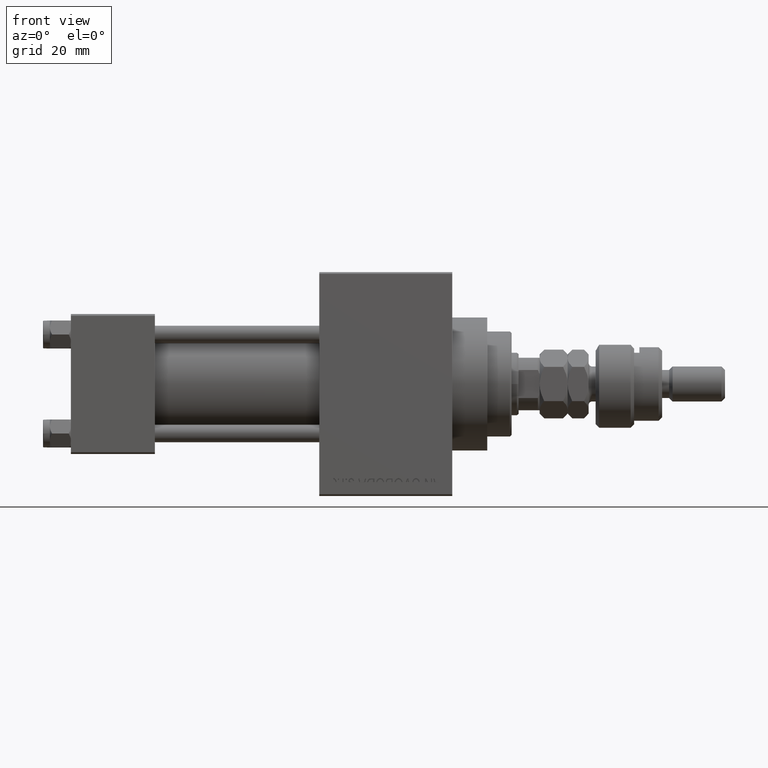
[diagram: clean part render]
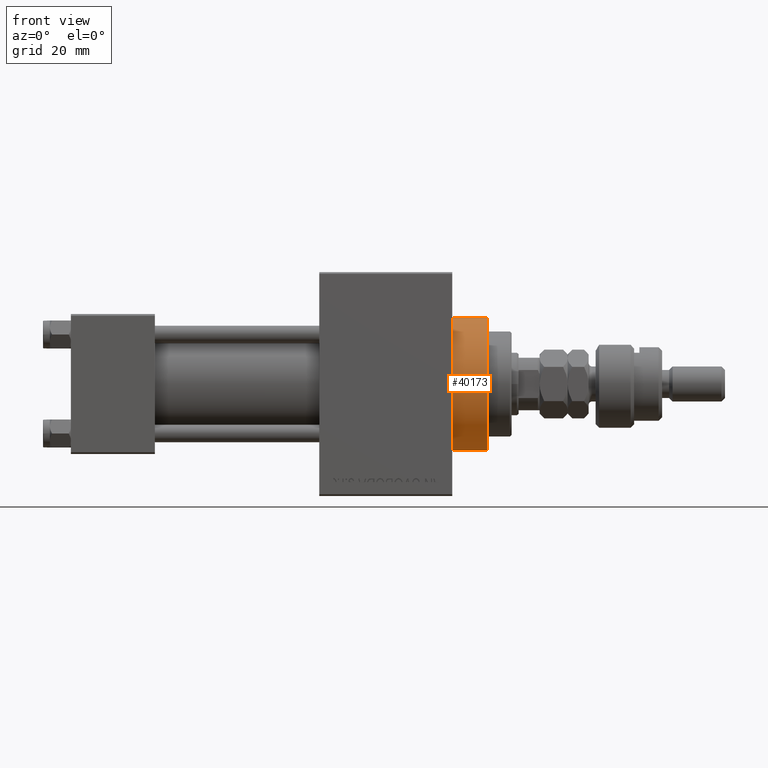
[diagram: same view with one face highlighted and labeled with its STEP entity id]
A machine part, front view. The second image highlights one B-rep face of the part: STEP entity #40173.
In plain terms, the highlighted cylindrical surface (partial cylindrical patch) has radius 19 mm, axis along (-1, -0, -0).
Its self-contained STEP definition (entity closure, byte-faithful):
#1969 = VECTOR ( 'NONE', #9126, 1000.000000000000000 ) ;
#6237 = CARTESIAN_POINT ( 'NONE',  ( 119.0000000000000142, 0.000000000000000000, 0.000000000000000000 ) ) ;
#6879 = EDGE_CURVE ( 'NONE', #28286, #16126, #11927, .T. ) ;
#7259 = VERTEX_POINT ( 'NONE', #28874 ) ;
#8302 = DIRECTION ( 'NONE',  ( 1.000000000000000000, 0.000000000000000000, 0.000000000000000000 ) ) ;
#8637 = CARTESIAN_POINT ( 'NONE',  ( 109.0000000000000142, 2.326828918379970970E-15, -19.00000000000000000 ) ) ;
#8832 = DIRECTION ( 'NONE',  ( -1.000000000000000000, -0.000000000000000000, -0.000000000000000000 ) ) ;
#9126 = DIRECTION ( 'NONE',  ( -1.000000000000000000, -0.000000000000000000, -0.000000000000000000 ) ) ;
#10004 = EDGE_CURVE ( 'NONE', #43630, #28286, #23726, .T. ) ;
#11099 = AXIS2_PLACEMENT_3D ( 'NONE', #24455, #8302, #42845 ) ;
#11824 = ORIENTED_EDGE ( 'NONE', *, *, #6879, .T. ) ;
#11927 = CIRCLE ( 'NONE', #11099, 19.00000000000000000 ) ;
#15115 = ORIENTED_EDGE ( 'NONE', *, *, #10004, .T. ) ;
#16126 = VERTEX_POINT ( 'NONE', #8637 ) ;
#17413 = AXIS2_PLACEMENT_3D ( 'NONE', #6237, #44052, #21619 ) ;
#18365 = CARTESIAN_POINT ( 'NONE',  ( 119.0000000000000142, 0.000000000000000000, 19.00000000000000000 ) ) ;
#20656 = CIRCLE ( 'NONE', #17413, 19.00000000000000000 ) ;
#21619 = DIRECTION ( 'NONE',  ( 0.000000000000000000, 0.000000000000000000, -1.000000000000000000 ) ) ;
#23726 = LINE ( 'NONE', #38828, #34561 ) ;
#24012 = ORIENTED_EDGE ( 'NONE', *, *, #45223, .F. ) ;
#24455 = CARTESIAN_POINT ( 'NONE',  ( 109.0000000000000142, 0.000000000000000000, 0.000000000000000000 ) ) ;
#26255 = DIRECTION ( 'NONE',  ( -1.000000000000000000, -0.000000000000000000, -0.000000000000000000 ) ) ;
#26533 = ORIENTED_EDGE ( 'NONE', *, *, #30388, .F. ) ;
#28286 = VERTEX_POINT ( 'NONE', #40602 ) ;
#28874 = CARTESIAN_POINT ( 'NONE',  ( 119.0000000000000142, 2.326828918379970970E-15, -19.00000000000000000 ) ) ;
#29792 = DIRECTION ( 'NONE',  ( 0.000000000000000000, 0.000000000000000000, 1.000000000000000000 ) ) ;
#29910 = EDGE_LOOP ( 'NONE', ( #24012, #26533, #15115, #11824 ) ) ;
#30034 = CYLINDRICAL_SURFACE ( 'NONE', #43637, 19.00000000000000000 ) ;
#30388 = EDGE_CURVE ( 'NONE', #43630, #7259, #20656, .T. ) ;
#31822 = LINE ( 'NONE', #35842, #1969 ) ;
#34561 = VECTOR ( 'NONE', #8832, 1000.000000000000000 ) ;
#35842 = CARTESIAN_POINT ( 'NONE',  ( 119.0000000000000142, 2.326828918379970970E-15, -19.00000000000000000 ) ) ;
#36839 = FACE_OUTER_BOUND ( 'NONE', #29910, .T. ) ;
#38828 = CARTESIAN_POINT ( 'NONE',  ( 119.0000000000000142, 0.000000000000000000, 19.00000000000000000 ) ) ;
#40173 = ADVANCED_FACE ( 'NONE', ( #36839 ), #30034, .T. ) ;
#40602 = CARTESIAN_POINT ( 'NONE',  ( 109.0000000000000142, 0.000000000000000000, 19.00000000000000000 ) ) ;
#40630 = CARTESIAN_POINT ( 'NONE',  ( 119.0000000000000142, 0.000000000000000000, 0.000000000000000000 ) ) ;
#42845 = DIRECTION ( 'NONE',  ( 0.000000000000000000, 0.000000000000000000, -1.000000000000000000 ) ) ;
#43630 = VERTEX_POINT ( 'NONE', #18365 ) ;
#43637 = AXIS2_PLACEMENT_3D ( 'NONE', #40630, #26255, #29792 ) ;
#44052 = DIRECTION ( 'NONE',  ( 1.000000000000000000, 0.000000000000000000, 0.000000000000000000 ) ) ;
#45223 = EDGE_CURVE ( 'NONE', #7259, #16126, #31822, .T. ) ;